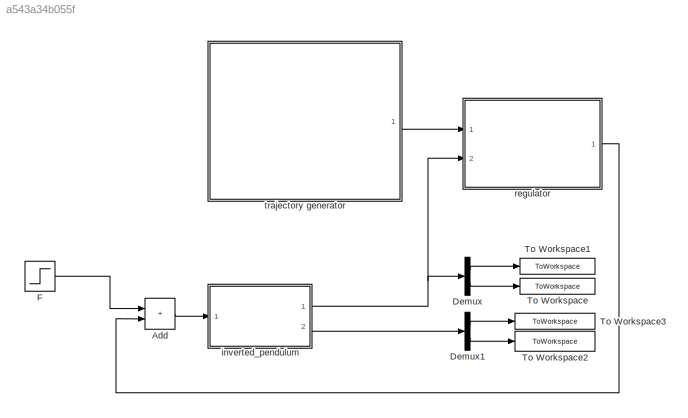
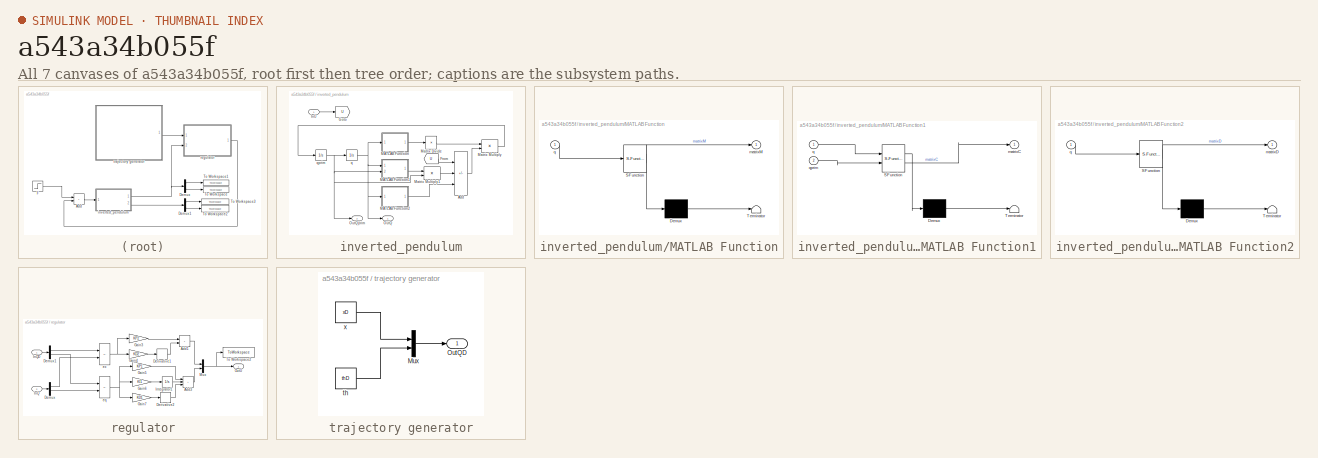
[diagram: thumbnail index - all 7 canvases of the model, root first then tree order]
MODEL slx_a543a34b055f
KIND model
CONFIG AbsTol = auto
CONFIG EnableMultiTasking = off
CONFIG FixedStep = 0.001
CONFIG MaxStep = auto
CONFIG MinStep = auto
CONFIG RelTol = 1e-3
CONFIG SampleTimeConstraint = Unconstrained
CONFIG SolverName = FixedStepAuto
CONFIG StartTime = 0.0
CONFIG StopTime = 20.0
BLOCK [Sum] Add
  IconShape = rectangular
  Ports = [2, 1]
BLOCK [Demux] Demux
  Outputs = 2
  Ports = [1, 2]
BLOCK [Demux] Demux1
  Outputs = 2
  Ports = [1, 2]
BLOCK [Step] F
  After = [0 ; 0]
  Before = u0
  SampleTime = 0
  Time = Ftime
BLOCK [ToWorkspace] To Workspace
  FixptAsFi = on
  MaxDataPoints = inf
  Ports = [1]
  SampleTime = -1
  VariableName = theta
BLOCK [ToWorkspace] To Workspace1
  FixptAsFi = on
  MaxDataPoints = inf
  Ports = [1]
  SampleTime = -1
  VariableName = x
BLOCK [ToWorkspace] To Workspace2
  FixptAsFi = on
  MaxDataPoints = inf
  Ports = [1]
  SampleTime = -1
  VariableName = thetaprim
BLOCK [ToWorkspace] To Workspace3
  FixptAsFi = on
  MaxDataPoints = inf
  Ports = [1]
  SampleTime = -1
  VariableName = xprim
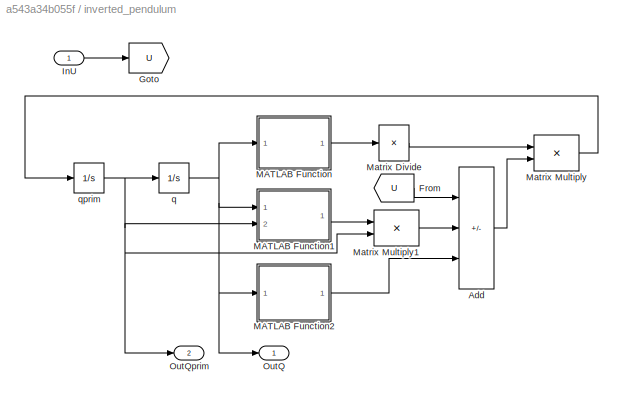
BLOCK [SubSystem] inverted_pendulum
  Ports = [1, 2]
  RequestExecContextInheritance = off
BLOCK [Sum] inverted_pendulum/Add
  IconShape = rectangular
  Inputs = +--
  Ports = [3, 1]
BLOCK [From] inverted_pendulum/From
  GotoTag = U
BLOCK [Goto] inverted_pendulum/Goto
  GotoTag = U
BLOCK [Inport] inverted_pendulum/InU
BLOCK [SubSystem] inverted_pendulum/MATLAB Function
  ErrorFcn = Stateflow.Translate.translate
  PermitHierarchicalResolution = ExplicitOnly
  Ports = [1, 1]
  RequestExecContextInheritance = off
  SFBlockType = MATLAB Function
  TreatAsAtomicUnit = on
BLOCK [Demux] inverted_pendulum/MATLAB Function/ Demux 
  Outputs = 1
  Ports = [1, 1]
BLOCK [S-Function] inverted_pendulum/MATLAB Function/ SFunction 
  EnableBusSupport = on
  FunctionName = sf_sfun
  Parameters = I,L,M,m
  PortCounts = [1 2]
  Ports = [1, 2]
  SFcnIsStateOwnerBlock = off
  SFunctionDeploymentMode = off
  Tag = Stateflow S-Function 2
BLOCK [Terminator] inverted_pendulum/MATLAB Function/ Terminator 
BLOCK [Outport] inverted_pendulum/MATLAB Function/matrixM
BLOCK [Inport] inverted_pendulum/MATLAB Function/q
BLOCK [SubSystem] inverted_pendulum/MATLAB Function1
  ErrorFcn = Stateflow.Translate.translate
  PermitHierarchicalResolution = ExplicitOnly
  Ports = [2, 1]
  RequestExecContextInheritance = off
  SFBlockType = MATLAB Function
  TreatAsAtomicUnit = on
BLOCK [Demux] inverted_pendulum/MATLAB Function1/ Demux 
  Outputs = 1
  Ports = [1, 1]
BLOCK [S-Function] inverted_pendulum/MATLAB Function1/ SFunction 
  EnableBusSupport = on
  FunctionName = sf_sfun
  Parameters = L,b,m
  PortCounts = [2 2]
  Ports = [2, 2]
  SFcnIsStateOwnerBlock = off
  SFunctionDeploymentMode = off
  Tag = Stateflow S-Function 1
BLOCK [Terminator] inverted_pendulum/MATLAB Function1/ Terminator 
BLOCK [Outport] inverted_pendulum/MATLAB Function1/matrixC
BLOCK [Inport] inverted_pendulum/MATLAB Function1/q
BLOCK [Inport] inverted_pendulum/MATLAB Function1/qprim
  Port = 2
BLOCK [SubSystem] inverted_pendulum/MATLAB Function2
  ErrorFcn = Stateflow.Translate.translate
  PermitHierarchicalResolution = ExplicitOnly
  Ports = [1, 1]
  RequestExecContextInheritance = off
  SFBlockType = MATLAB Function
  TreatAsAtomicUnit = on
BLOCK [Demux] inverted_pendulum/MATLAB Function2/ Demux 
  Outputs = 1
  Ports = [1, 1]
BLOCK [S-Function] inverted_pendulum/MATLAB Function2/ SFunction 
  EnableBusSupport = on
  FunctionName = sf_sfun
  Parameters = L,m
  PortCounts = [1 2]
  Ports = [1, 2]
  SFcnIsStateOwnerBlock = off
  SFunctionDeploymentMode = off
  Tag = Stateflow S-Function 3
BLOCK [Terminator] inverted_pendulum/MATLAB Function2/ Terminator 
BLOCK [Outport] inverted_pendulum/MATLAB Function2/matrixD
BLOCK [Inport] inverted_pendulum/MATLAB Function2/q
BLOCK [Product] inverted_pendulum/Matrix Divide
  Inputs = /
  Multiplication = Matrix(*)
  Ports = [1, 1]
BLOCK [Product] inverted_pendulum/Matrix Multiply
  Multiplication = Matrix(*)
  Ports = [2, 1]
BLOCK [Product] inverted_pendulum/Matrix Multiply1
  Multiplication = Matrix(*)
  Ports = [2, 1]
BLOCK [Outport] inverted_pendulum/OutQ
BLOCK [Outport] inverted_pendulum/OutQprim
  Port = 2
BLOCK [Integrator] inverted_pendulum/q
  InitialCondition = q0
  Ports = [1, 1]
BLOCK [Integrator] inverted_pendulum/qprim
  InitialCondition = q0
  Ports = [1, 1]
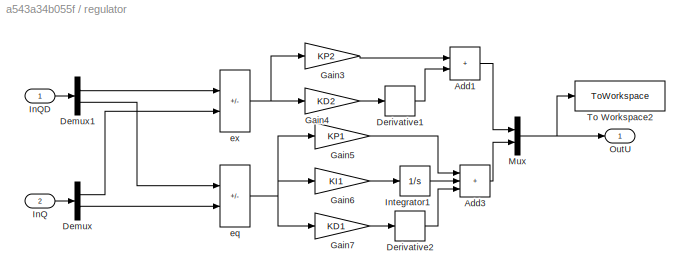
BLOCK [SubSystem] regulator
  Ports = [2, 1]
  RequestExecContextInheritance = off
BLOCK [Sum] regulator/Add1
  IconShape = rectangular
  Ports = [2, 1]
BLOCK [Sum] regulator/Add3
  IconShape = rectangular
  Inputs = +++
  Ports = [3, 1]
BLOCK [Demux] regulator/Demux
  Outputs = 2
  Ports = [1, 2]
BLOCK [Demux] regulator/Demux1
  Outputs = 2
  Ports = [1, 2]
BLOCK [Derivative] regulator/Derivative1
BLOCK [Derivative] regulator/Derivative2
BLOCK [Gain] regulator/Gain3
  Gain = KP2
BLOCK [Gain] regulator/Gain4
  Gain = KD2
BLOCK [Gain] regulator/Gain5
  Gain = KP1
BLOCK [Gain] regulator/Gain6
  Gain = KI1
BLOCK [Gain] regulator/Gain7
  Gain = KD1
BLOCK [Inport] regulator/InQ
  Port = 2
BLOCK [Inport] regulator/InQD
BLOCK [Integrator] regulator/Integrator1
  Ports = [1, 1]
BLOCK [Mux] regulator/Mux
  DisplayOption = bar
  Inputs = 2
  Ports = [2, 1]
BLOCK [Outport] regulator/OutU
BLOCK [ToWorkspace] regulator/To Workspace2
  FixptAsFi = on
  MaxDataPoints = inf
  Ports = [1]
  SampleTime = -1
  VariableName = u
BLOCK [Sum] regulator/eq
  IconShape = rectangular
  Inputs = +-
  Ports = [2, 1]
BLOCK [Sum] regulator/ex
  IconShape = rectangular
  Inputs = +-
  Ports = [2, 1]
BLOCK [SubSystem] trajectory generator
  Ports = [0, 1]
  RequestExecContextInheritance = off
BLOCK [Mux] trajectory generator/Mux
  DisplayOption = bar
  Inputs = 2
  Ports = [2, 1]
BLOCK [Outport] trajectory generator/OutQD
BLOCK [Constant] trajectory generator/th
  NameLocation = top
  Value = thD
BLOCK [Constant] trajectory generator/x
  NameLocation = top
  Value = xD
LINE Add:1 -> inverted_pendulum:1
LINE Demux1:1 -> To Workspace3:1
LINE Demux1:2 -> To Workspace2:1
LINE Demux:1 -> To Workspace1:1
LINE Demux:2 -> To Workspace:1
LINE F:1 -> Add:1
LINE inverted_pendulum/Add:1 -> inverted_pendulum/Matrix Multiply:2
LINE inverted_pendulum/From:1 -> inverted_pendulum/Add:1
LINE inverted_pendulum/InU:1 -> inverted_pendulum/Goto:1
LINE inverted_pendulum/MATLAB Function1:1 -> inverted_pendulum/Matrix Multiply1:1
LINE inverted_pendulum/MATLAB Function2:1 -> inverted_pendulum/Add:3
LINE inverted_pendulum/MATLAB Function:1 -> inverted_pendulum/Matrix Divide:1
LINE inverted_pendulum/Matrix Divide:1 -> inverted_pendulum/Matrix Multiply:1
LINE inverted_pendulum/Matrix Multiply1:1 -> inverted_pendulum/Add:2
LINE inverted_pendulum/Matrix Multiply:1 -> inverted_pendulum/qprim:1
NET inverted_pendulum/q:1 -> inverted_pendulum/MATLAB Function1:1, inverted_pendulum/MATLAB Function2:1, inverted_pendulum/MATLAB Function:1, inverted_pendulum/OutQ:1
NET inverted_pendulum/qprim:1 -> inverted_pendulum/MATLAB Function1:2, inverted_pendulum/Matrix Multiply1:2, inverted_pendulum/OutQprim:1, inverted_pendulum/q:1
NET inverted_pendulum:1 -> Demux:1, regulator:2
LINE inverted_pendulum:2 -> Demux1:1
LINE regulator/Add1:1 -> regulator/Mux:1
LINE regulator/Add3:1 -> regulator/Mux:2
LINE regulator/Demux1:1 -> regulator/ex:1
LINE regulator/Demux1:2 -> regulator/eq:1
LINE regulator/Demux:1 -> regulator/ex:2
LINE regulator/Demux:2 -> regulator/eq:2
LINE regulator/Derivative1:1 -> regulator/Add1:2
LINE regulator/Derivative2:1 -> regulator/Add3:3
LINE regulator/Gain3:1 -> regulator/Add1:1
LINE regulator/Gain4:1 -> regulator/Derivative1:1
LINE regulator/Gain5:1 -> regulator/Add3:1
LINE regulator/Gain6:1 -> regulator/Integrator1:1
LINE regulator/Gain7:1 -> regulator/Derivative2:1
LINE regulator/InQ:1 -> regulator/Demux:1
LINE regulator/InQD:1 -> regulator/Demux1:1
LINE regulator/Integrator1:1 -> regulator/Add3:2
NET regulator/Mux:1 -> regulator/OutU:1, regulator/To Workspace2:1
NET regulator/eq:1 -> regulator/Gain5:1, regulator/Gain6:1, regulator/Gain7:1
NET regulator/ex:1 -> regulator/Gain3:1, regulator/Gain4:1
LINE regulator:1 -> Add:2
LINE trajectory generator/Mux:1 -> trajectory generator/OutQD:1
LINE trajectory generator/th:1 -> trajectory generator/Mux:2
LINE trajectory generator/x:1 -> trajectory generator/Mux:1
LINE trajectory generator:1 -> regulator:1
note: NET lines group one-source signal fan-out (src -> all destinations, sorted); 1:1 wires keep LINE
CHART inverted_pendulum/MATLAB Function1 states=1 transitions=1
  STATE_LABEL 'eML_blk_kernel()'
  STATE_LABEL 'SCRIPT:\nfunction matrixC = fcn(q, qprim, m, b, L)\n\nC11 = b;\nC12 = - m * L * qprim(2) * sin(q(2));\nC21 = 0;\nC22 = 0;\n\nmatrixC = [ C11 , C12 ; C21 , C22 ];'
CHART inverted_pendulum/MATLAB Function states=1 transitions=1
  STATE_LABEL 'eML_blk_kernel()'
  STATE_LABEL 'SCRIPT:\nfunction matrixM = fcn(q, M, m, I, L)\n\nM11 = M + m;\nM12 = m * L * cos(q(2));\nM21 = m * L * cos(q(2));\nM22 = I + m * L^2;\n\nmatrixM = [ M11 , M12 ; M21 , M22 ];\n'
CHART inverted_pendulum/MATLAB Function2 states=1 transitions=1
  STATE_LABEL 'eML_blk_kernel()'
  STATE_LABEL 'SCRIPT:\nfunction matrixD = fcn(q, m, L)\n\ng =  9.80665;\n\nD1 = 0;\nD2 = m * g * L * sin(q(2));\n\nmatrixD = [ D1 ; D2 ];'
CHART  states=0 transitions=0
CHART  states=0 transitions=0
CHART  states=0 transitions=0
